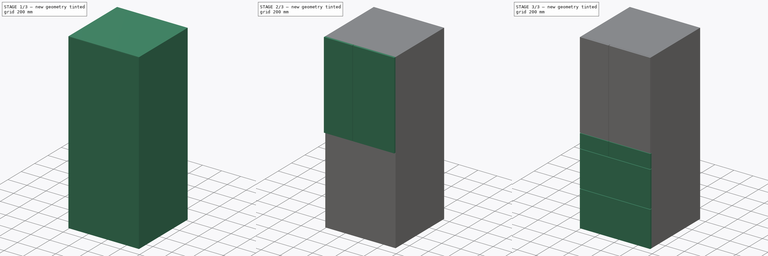
[diagram: build sequence overview — one tinted view per stage of 3, left to right]
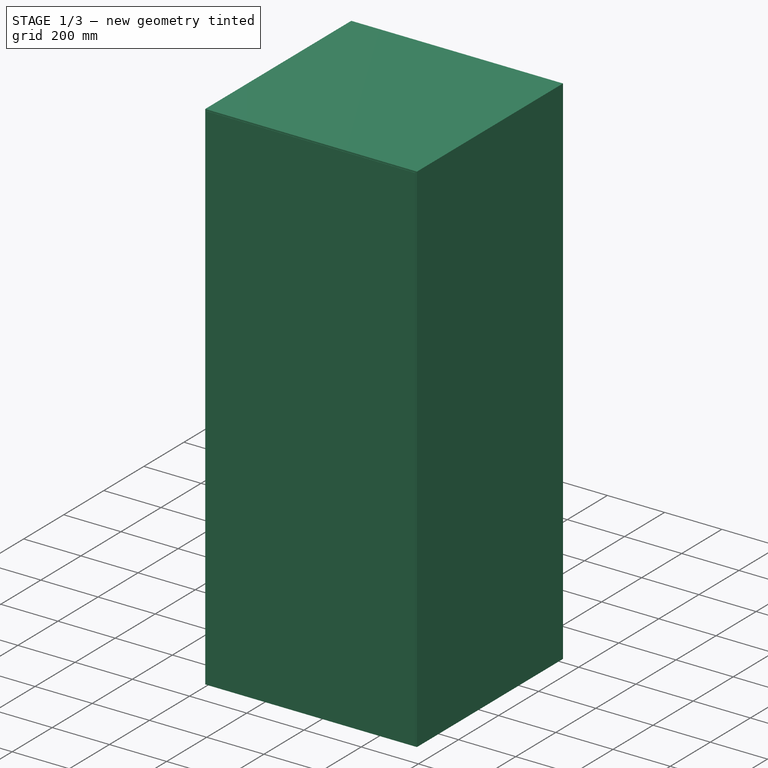
[diagram: stage 1 of 3 — iso view after this stage's code; geometry added in this stage tinted green]
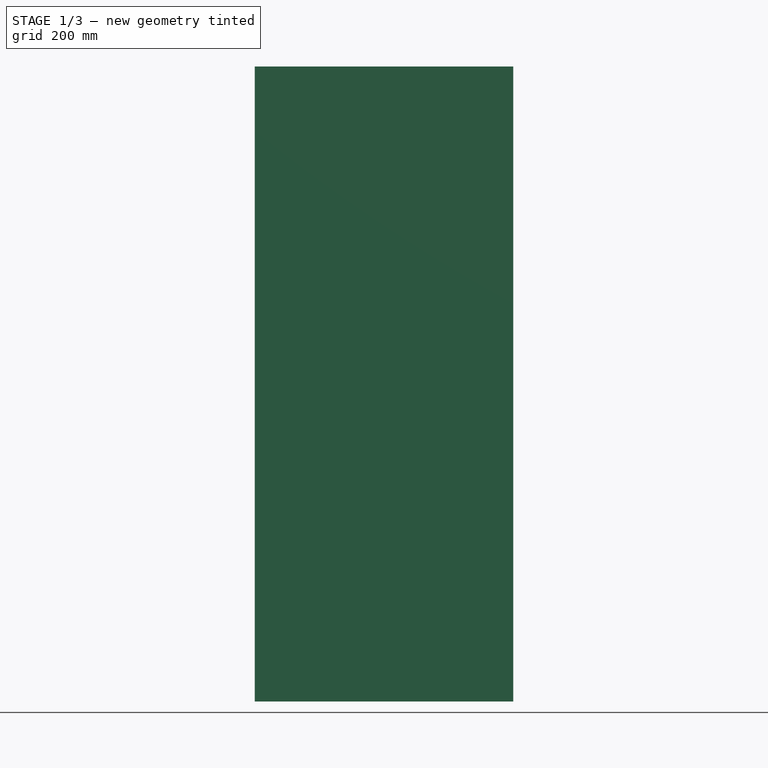
[diagram: stage 1 of 3 — front view after this stage's code; geometry added in this stage tinted green]
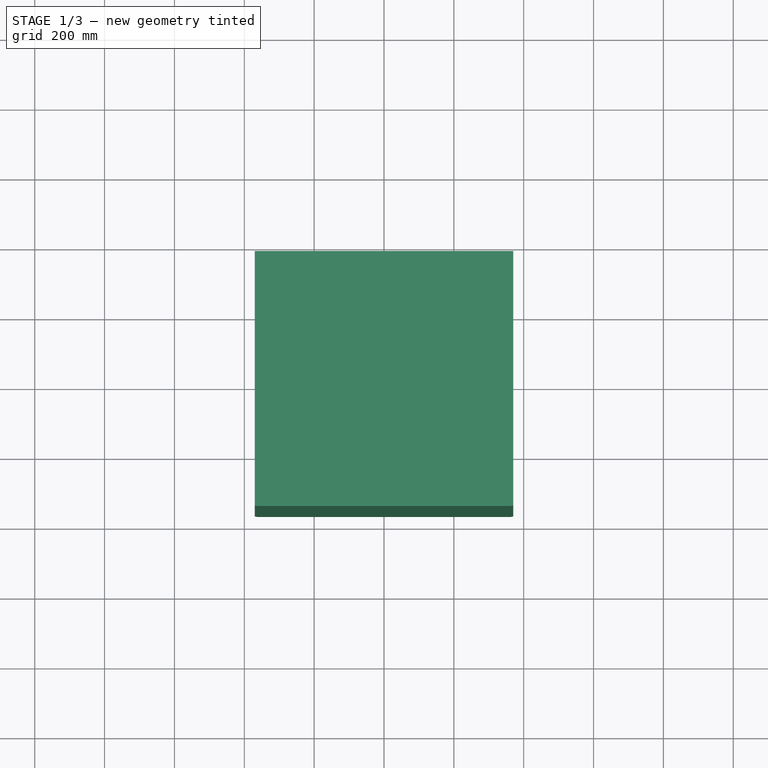
[diagram: stage 1 of 3 — top view after this stage's code; geometry added in this stage tinted green]
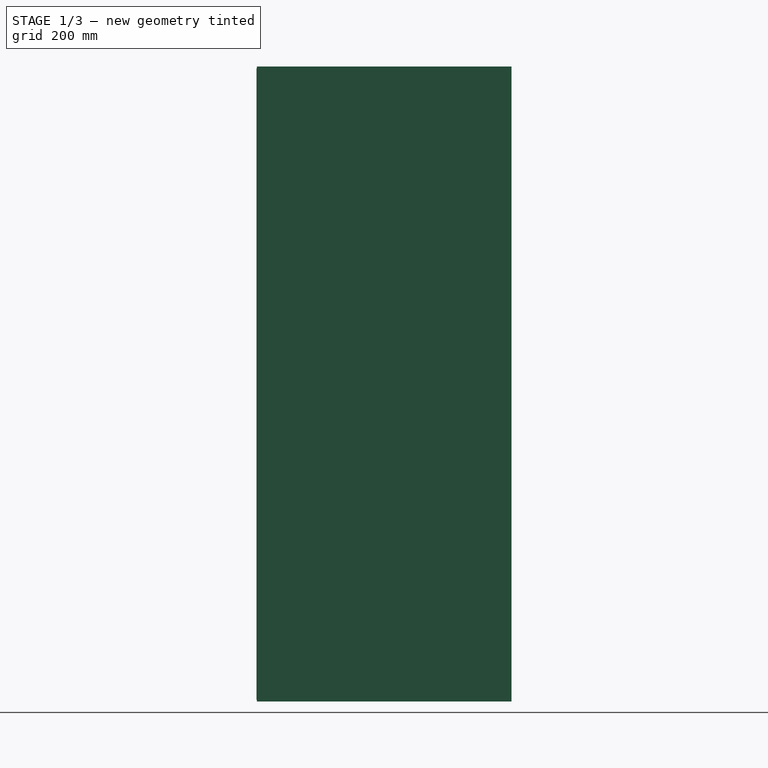
[diagram: stage 1 of 3 — right view after this stage's code; geometry added in this stage tinted green]
FCSTD DOCUMENT  (FreeCAD 1.0R39109 (Git))
Label: refrigerator
License: All rights reserved
LicenseURL: https://en.wikipedia.org/wiki/All_rights_reserved
objects: Sketcher::SketchObject×4, PartDesign::Pad×4, PartDesign::Body×1, Part::FeaturePython×1, App::Part×1
note: 22 computed .brp shape members not serialized (recipe doc carries the construction recipe); baked Part::Feature solids carry a one-line shape summary decoded from their .brp

FEATURE [Sketcher::SketchObject] Sketch
  ArcFitTolerance = 1e-06
  AttachmentSupport = -> [XY_Plane]
  FullyConstrained = true
  MakeInternals = false
  MapMode = 5
  sketch-geometry (5):
    g0: LineSegment StartX=-370 StartY=-364.5 StartZ=0 EndX=370 EndY=-364.5 EndZ=0
    g1: LineSegment StartX=370 StartY=-364.5 StartZ=0 EndX=370 EndY=364.5 EndZ=0
    g2: LineSegment StartX=370 StartY=364.5 StartZ=0 EndX=-370 EndY=364.5 EndZ=0
    g3: LineSegment StartX=-370 StartY=364.5 StartZ=0 EndX=-370 EndY=-364.5 EndZ=0
    g4: GeomPoint [constr] X=0 Y=0 Z=0
  constraints (12):
    c: Coincident(g0,g1)
    c: Coincident(g1,g2)
    c: Coincident(g2,g3)
    c: Coincident(g3,g0)
    c: Horizontal(g0)
    c: Horizontal(g2)
    c: Vertical(g1)
    c: Vertical(g3)
    c: Symmetric(g2,g0,g4)
    c: Distance(g1,g3) = 740
    c: Distance(g0,g2) = 729
    c: Coincident(g4,g-1)
FEATURE [PartDesign::Pad] Pad
  Direction = (0,0,1)
  Length = 1818
  Length2 = 10
  Profile = -> Sketch
  ReferenceAxis = -> Sketch [N_Axis]
  Refine = true
  Suppressed = false
  Type = 0
FEATURE [Sketcher::SketchObject] Sketch001
  ArcFitTolerance = 1e-06
  AttachmentSupport = -> [Pad]
  ExternalGeometry = -> [Pad]
  FullyConstrained = true
  MakeInternals = false
  MapMode = 5
  Placement = pos=(0,-364.5,0) rot=(1,0,0;1.5708rad)
  sketch-geometry (10):
    g0: LineSegment [constr] StartX=370 StartY=1818 StartZ=0 EndX=370 EndY=1813 EndZ=0
    g1: LineSegment [constr] StartX=370 StartY=1818 StartZ=0 EndX=365 EndY=1818 EndZ=0
    g2: LineSegment [constr] StartX=-370 StartY=0 StartZ=0 EndX=-370 EndY=5 EndZ=0
    g3: LineSegment [constr] StartX=-370 StartY=0 StartZ=0 EndX=-365 EndY=0 EndZ=0
    g4: LineSegment [constr] StartX=-370 StartY=5 StartZ=0 EndX=-365 EndY=5 EndZ=0
    g5: LineSegment [constr] StartX=370 StartY=1813 StartZ=0 EndX=365 EndY=1813 EndZ=0
    g6: LineSegment StartX=365 StartY=1813 StartZ=0 EndX=-365 EndY=1813 EndZ=0
    g7: LineSegment StartX=-365 StartY=1813 StartZ=0 EndX=-365 EndY=5 EndZ=0
    g8: LineSegment StartX=-365 StartY=5 StartZ=0 EndX=365 EndY=5 EndZ=0
    g9: LineSegment StartX=365 StartY=5 StartZ=0 EndX=365 EndY=1813 EndZ=0
  constraints (28):
    c: Distance(g0) = 5
    c: Coincident(g0,g-4)
    c: PointOnObject(g0,g-3)
    c: Distance(g1) = 5
    c: Coincident(g1,g0)
    c: PointOnObject(g1,g-4)
    c: Distance(g2) = 5
    c: Coincident(g2,g-5)
    c: PointOnObject(g2,g-5)
    c: Distance(g3) = 5
    c: Coincident(g3,g2)
    c: PointOnObject(g3,g-1)
    c: Distance(g4) = 5
    c: Coincident(g4,g2)
    c: Horizontal(g4)
    c: Distance(g5) = 5
    c: Coincident(g5,g0)
    c: Horizontal(g5)
    c: Coincident(g6,g7)
    c: Coincident(g7,g8)
    c: Coincident(g8,g9)
    c: Coincident(g9,g6)
    c: Horizontal(g6)
    c: Horizontal(g8)
    c: Vertical(g7)
    c: Vertical(g9)
    c: Coincident(g6,g5)
    c: Coincident(g7,g4)
FEATURE [PartDesign::Pad] Pad001
  BaseFeature = -> Pad
  Direction = (0,-1,2e-16)
  Length = 1
  Length2 = 10
  Profile = -> Sketch001
  ReferenceAxis = -> Sketch001 [N_Axis]
  Refine = true
  Suppressed = false
  Type = 0
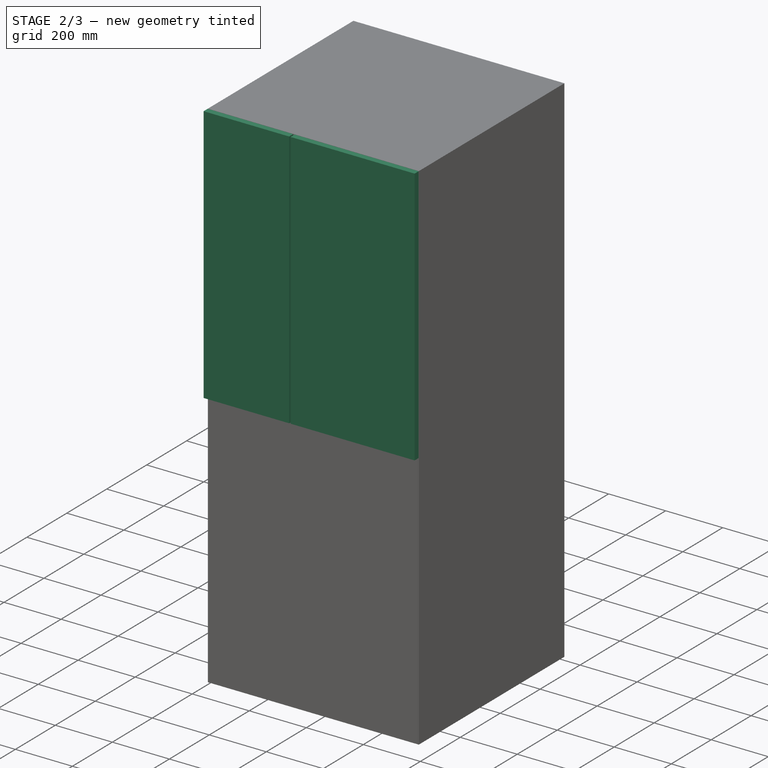
[diagram: stage 2 of 3 — iso view after this stage's code; geometry added in this stage tinted green]
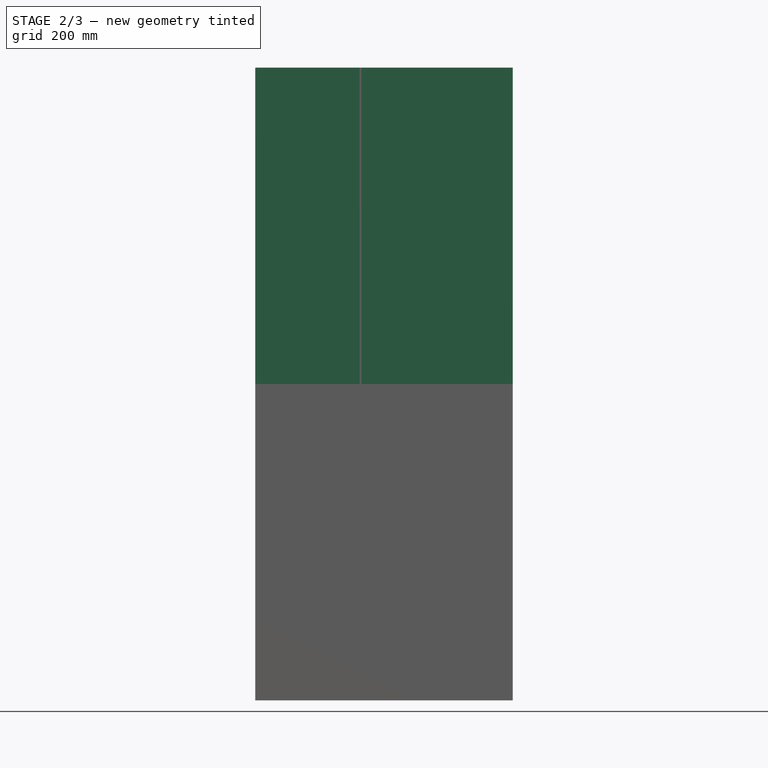
[diagram: stage 2 of 3 — front view after this stage's code; geometry added in this stage tinted green]
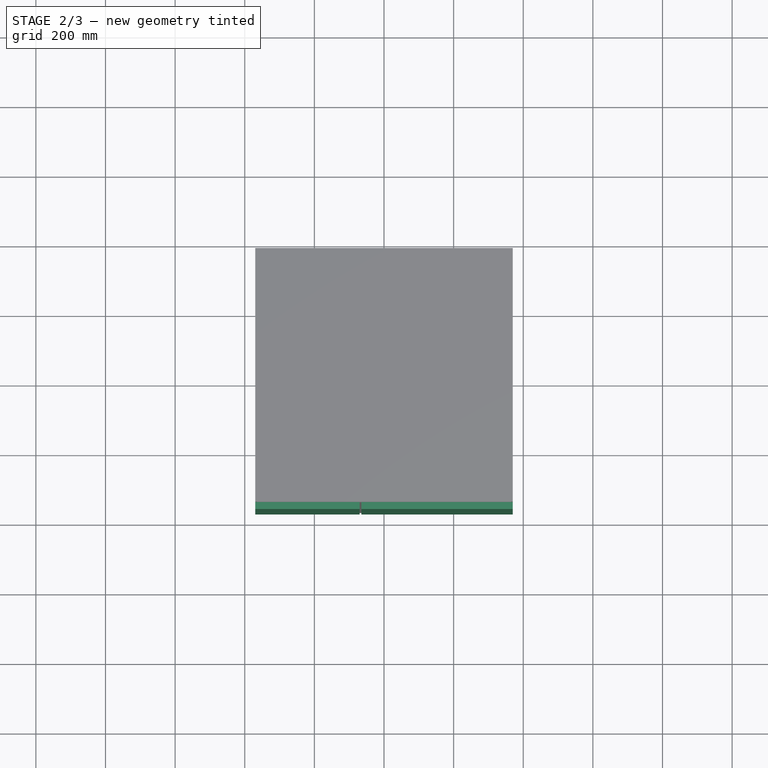
[diagram: stage 2 of 3 — top view after this stage's code; geometry added in this stage tinted green]
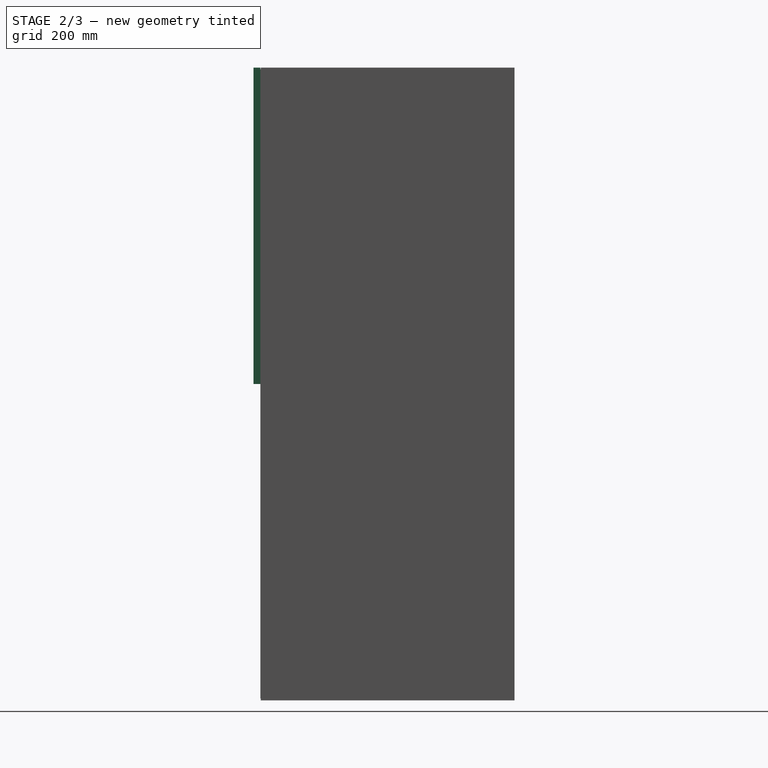
[diagram: stage 2 of 3 — right view after this stage's code; geometry added in this stage tinted green]
FEATURE [Sketcher::SketchObject] Sketch002
  ArcFitTolerance = 1e-06
  AttachmentSupport = -> [Pad001]
  ExternalGeometry = -> [Pad001]
  FullyConstrained = false
  MakeInternals = false
  MapMode = 5
  Placement = pos=(0,-365.5,0) rot=(1,0,0;1.5708rad)
  sketch-geometry (8):
    g0: LineSegment StartX=-370 StartY=1818 StartZ=0 EndX=-370 EndY=909 EndZ=0
    g1: LineSegment StartX=370 StartY=909 StartZ=0 EndX=370 EndY=1818 EndZ=0
    g2: LineSegment StartX=370 StartY=1818 StartZ=0 EndX=-65.0129 EndY=1818 EndZ=0
    g3: LineSegment StartX=-70.0129 StartY=1818 StartZ=0 EndX=-70.0129 EndY=909 EndZ=0
    g4: LineSegment StartX=-65.0129 StartY=1818 StartZ=0 EndX=-65.0129 EndY=909 EndZ=0
    g5: LineSegment StartX=-70.0129 StartY=1818 StartZ=0 EndX=-370 EndY=1818 EndZ=0
    g6: LineSegment StartX=-70.0129 StartY=909 StartZ=0 EndX=-370 EndY=909 EndZ=0
    g7: LineSegment StartX=-65.0129 StartY=909 StartZ=0 EndX=370 EndY=909 EndZ=0
  constraints (17):
    c: Coincident(g1,g2)
    c: Coincident(g5,g0)
    c: Vertical(g0)
    c: Vertical(g1)
    c: Horizontal(g2)
    c: Coincident(g0,g-4)
    c: Vertical(g3)
    c: PointOnObject(g3,g5)
    c: Vertical(g4)
    c: Coincident(g2,g4)
    c: PointOnObject(g5,g3)
    c: Coincident(g6,g3)
    c: Coincident(g6,g0)
    c: Horizontal(g6)
    c: Coincident(g7,g4)
    c: Coincident(g7,g1)
    c: Horizontal(g7)
FEATURE [PartDesign::Pad] Pad002
  BaseFeature = -> Pad001
  Direction = (0,-1,2e-16)
  Length = 20
  Length2 = 10
  Profile = -> Sketch002
  ReferenceAxis = -> Sketch002 [N_Axis]
  Refine = true
  Suppressed = false
  Type = 0
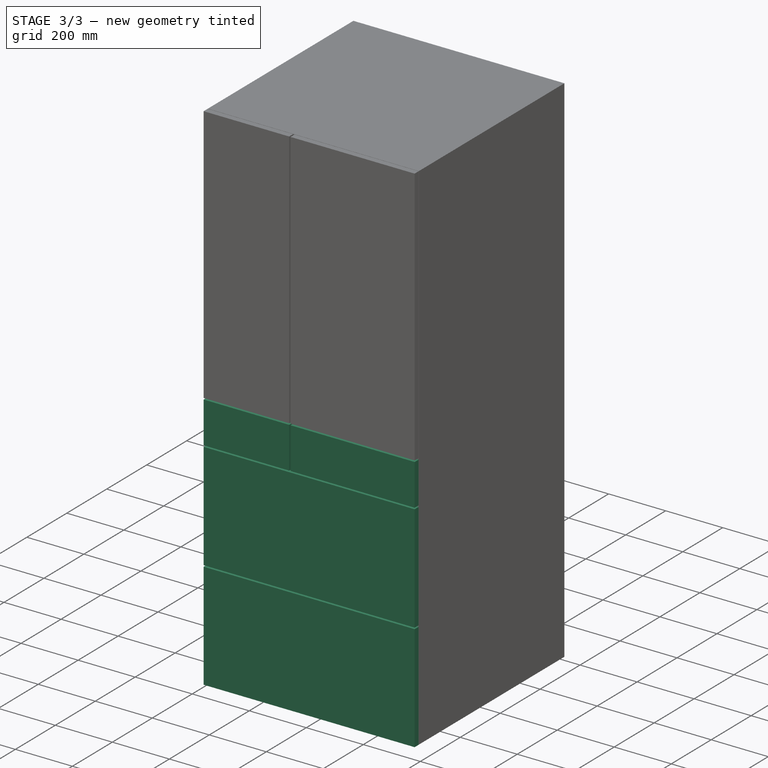
[diagram: stage 3 of 3 — iso view after this stage's code; geometry added in this stage tinted green]
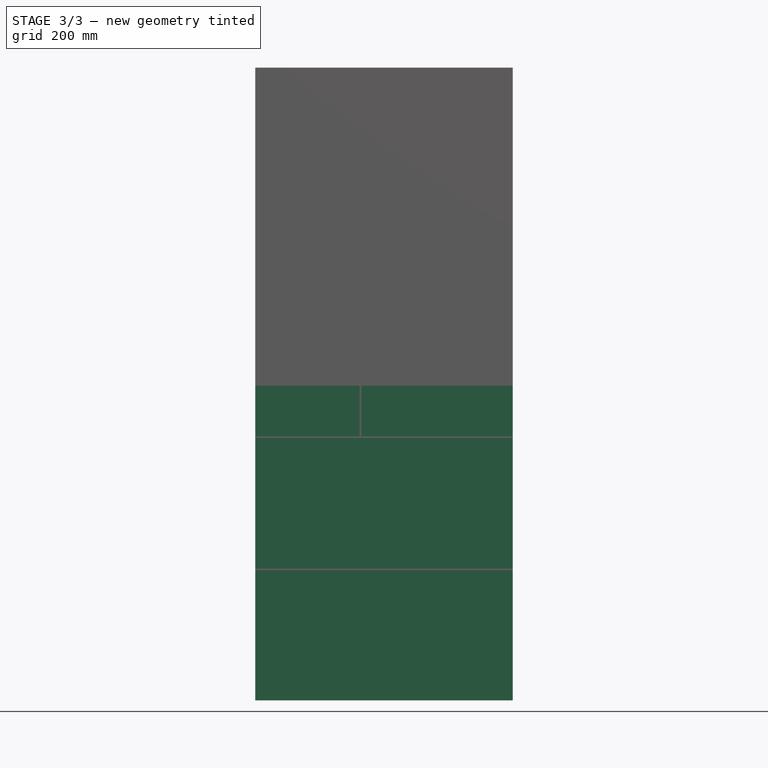
[diagram: stage 3 of 3 — front view after this stage's code; geometry added in this stage tinted green]
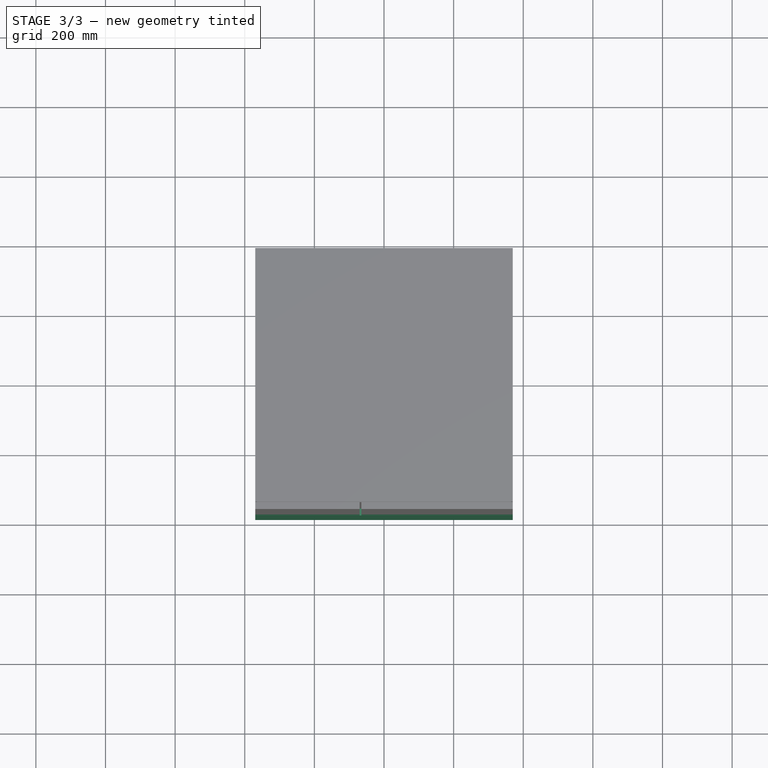
[diagram: stage 3 of 3 — top view after this stage's code; geometry added in this stage tinted green]
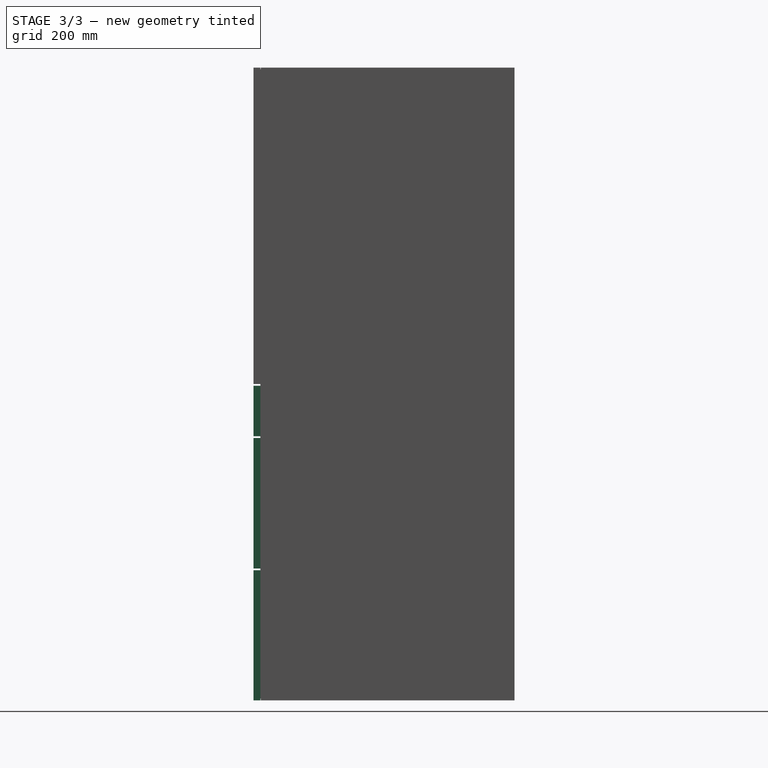
[diagram: stage 3 of 3 — right view after this stage's code; geometry added in this stage tinted green]
FEATURE [Sketcher::SketchObject] Sketch003
  ArcFitTolerance = 1e-06
  AttachmentSupport = -> [Pad002]
  ExternalGeometry = -> [Pad002]
  FullyConstrained = false
  MakeInternals = false
  MapMode = 5
  Placement = pos=(0,-385.5,0) rot=(1,0,0;1.5708rad)
  sketch-geometry (19):
    g0: LineSegment StartX=-370 StartY=904.002 StartZ=0 EndX=-70 EndY=904.002 EndZ=0
    g1: LineSegment StartX=-65 StartY=904.002 StartZ=0 EndX=370 EndY=904.002 EndZ=0
    g2: LineSegment [constr] StartX=-70 StartY=904.002 StartZ=0 EndX=-65 EndY=904.002 EndZ=0
    g3: LineSegment StartX=-70 StartY=904.002 StartZ=0 EndX=-70 EndY=759.002 EndZ=0
    g4: LineSegment StartX=-70 StartY=759.002 StartZ=0 EndX=-370 EndY=759.002 EndZ=0
    g5: LineSegment StartX=-370 StartY=904.002 StartZ=0 EndX=-370 EndY=759.002 EndZ=0
    g6: LineSegment StartX=-65 StartY=904.002 StartZ=0 EndX=-65 EndY=759.002 EndZ=0
    g7: LineSegment StartX=370 StartY=904.002 StartZ=0 EndX=370 EndY=759.002 EndZ=0
    g8: LineSegment StartX=370 StartY=759.002 StartZ=0 EndX=-65 EndY=759.002 EndZ=0
    g9: LineSegment [constr] StartX=-370 StartY=759.002 StartZ=0 EndX=-370 EndY=754.002 EndZ=0
    g10: LineSegment StartX=-370 StartY=754.002 StartZ=0 EndX=-370 EndY=379.002 EndZ=0
    g11: LineSegment StartX=-370 StartY=379.002 StartZ=0 EndX=370 EndY=379.002 EndZ=0
    g12: LineSegment StartX=370 StartY=379.002 StartZ=0 EndX=370 EndY=754.002 EndZ=0
    g13: LineSegment StartX=370 StartY=754.002 StartZ=0 EndX=-370 EndY=754.002 EndZ=0
    g14: LineSegment [constr] StartX=-370 StartY=379.002 StartZ=0 EndX=-370 EndY=374.002 EndZ=0
    g15: LineSegment StartX=-370 StartY=374.002 StartZ=0 EndX=-370 EndY=0 EndZ=0
    g16: LineSegment StartX=-370 StartY=0 StartZ=0 EndX=370 EndY=0 EndZ=0
    g17: LineSegment StartX=370 StartY=0 StartZ=0 EndX=370 EndY=374.002 EndZ=0
    g18: LineSegment StartX=370 StartY=374.002 StartZ=0 EndX=-370 EndY=374.002 EndZ=0
  constraints (50):
    c: Horizontal(g0)
    c: Horizontal(g1)
    c: Distance(g2) = 5
    c: Coincident(g2,g0)
    c: Coincident(g2,g1)
    c: Horizontal(g2)
    c: DistanceX(g0,g0) = 300
    c: Distance(g3) = 145
    c: Coincident(g3,g0)
    c: Vertical(g3)
    c: Coincident(g4,g3)
    c: Horizontal(g4)
    c: Vertical(g5)
    c: Coincident(g4,g5)
    c: Distance(g6) = 145
    c: Coincident(g6,g1)
    c: Vertical(g6)
    c: Distance(g7) = 145
    c: Coincident(g7,g1)
    c: Vertical(g7)
    c: Coincident(g8,g7)
    c: Coincident(g8,g6)
    c: Distance(g9) = 5
    c: Coincident(g9,g4)
    c: Vertical(g9)
    c: Coincident(g10,g11)
    c: Coincident(g11,g12)
    c: Coincident(g12,g13)
    c: Coincident(g13,g10)
    c: Vertical(g10)
    c: Vertical(g12)
    c: Horizontal(g11)
    c: Horizontal(g13)
    c: Distance(g10,g12) = 740
    c: Distance(g11,g13) = 375
    c: Coincident(g10,g9)
    c: Coincident(g5,g0)
    c: Distance(g14) = 5
    c: Coincident(g14,g10)
    c: Vertical(g14)
    c: Coincident(g15,g16)
    c: Coincident(g16,g17)
    c: Coincident(g17,g18)
    c: Coincident(g18,g15)
    c: Vertical(g15)
    c: Vertical(g17)
    c: Horizontal(g16)
    c: Horizontal(g18)
    c: Coincident(g15,g14)
    c: Coincident(g16,g-7)
FEATURE [PartDesign::Pad] Pad003
  BaseFeature = -> Pad002
  Direction = (0,-1,2e-16)
  Length = 20
  Length2 = 10
  Profile = -> Sketch003
  ReferenceAxis = -> Sketch003 [N_Axis]
  Refine = true
  Reversed = true
  Suppressed = false
  Type = 0
FEATURE [PartDesign::Body] Body
  AllowCompound = false
  Group = -> [Sketch,Pad,Sketch001,Pad001,Sketch002,Pad002,Sketch003,Pad003]
  Origin = -> Origin
  Tip = -> Pad003
FEATURE [Part::FeaturePython] Clone  label="refrigerator_clone"  # Draft clone (typed FeaturePython)
  AttacherType = Attacher::AttachEngine3D
  Fuse = false
  Objects = -> [Body]
  Scale = (1,1,1)
FEATURE [App::Part] Part  label="refrigerator"
  Group = -> [Clone]
  Origin = -> Origin001
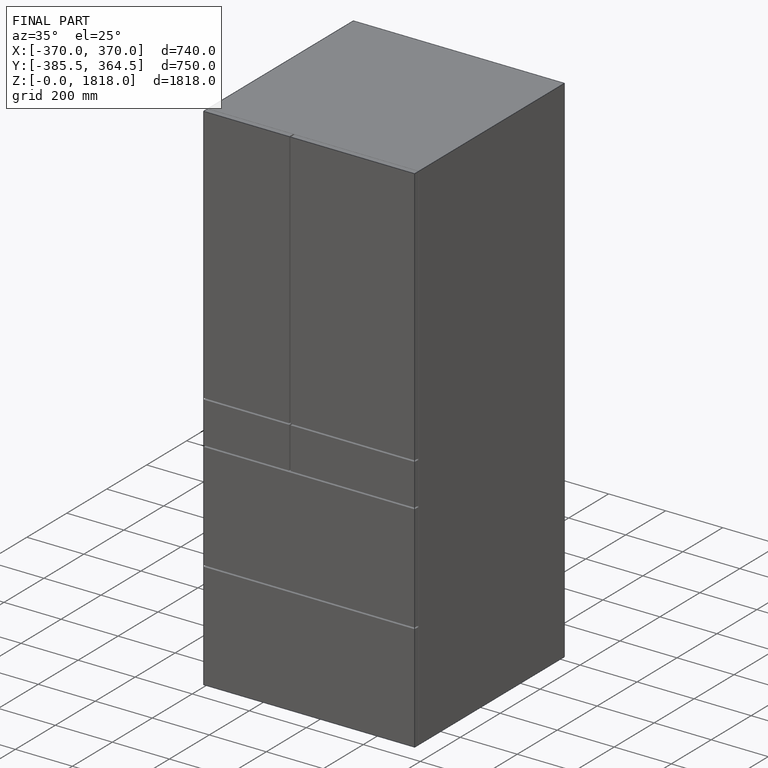
[diagram: finished part — iso view with bounding-box wireframe]
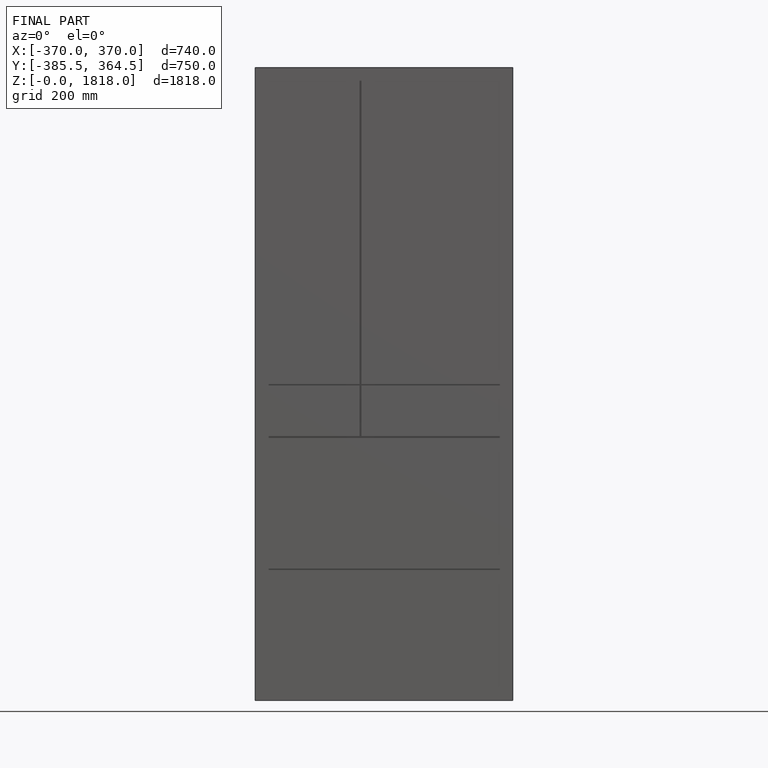
[diagram: finished part — front view with bounding-box wireframe]
